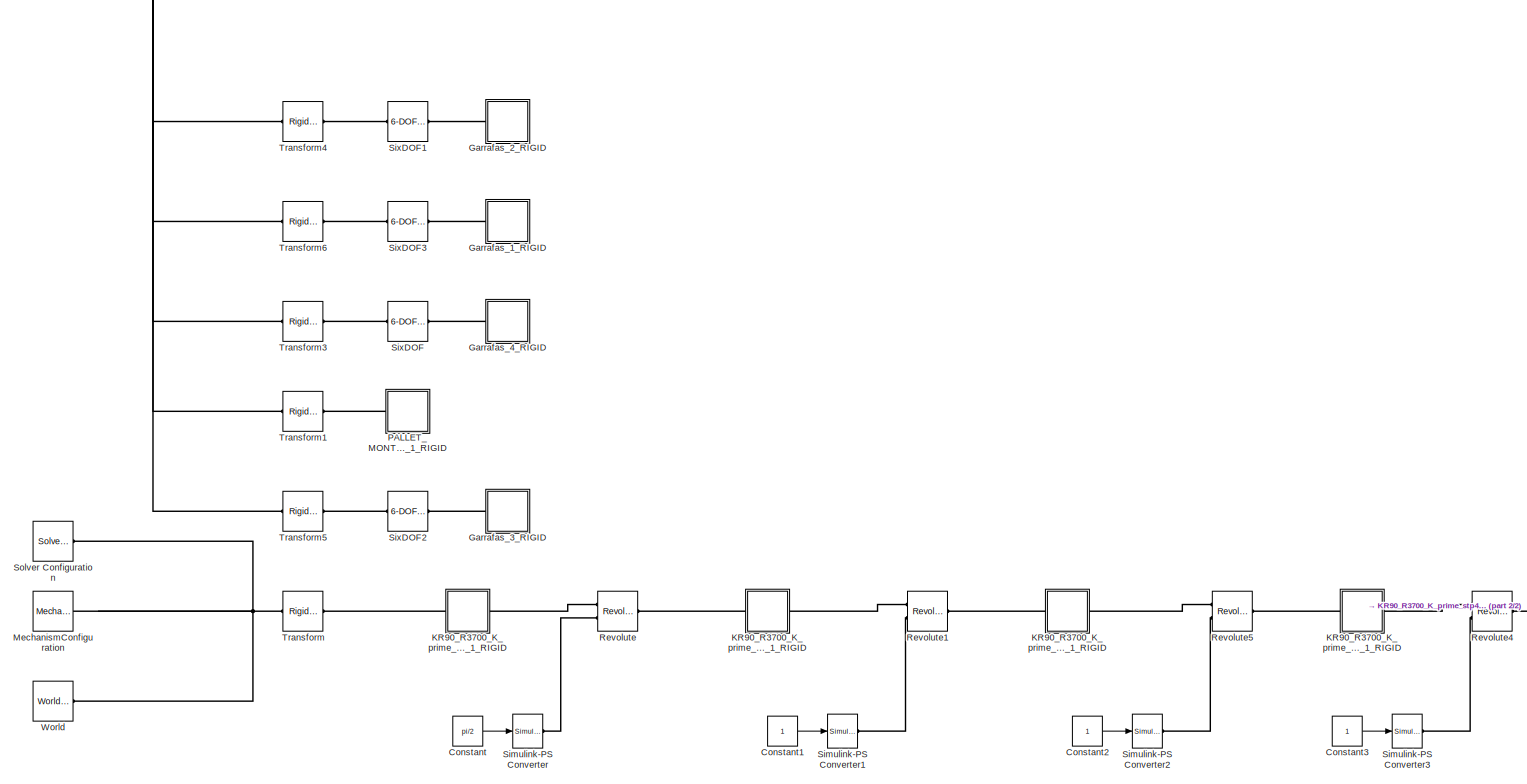
[diagram: root canvas - part 1/2, left side, full height]
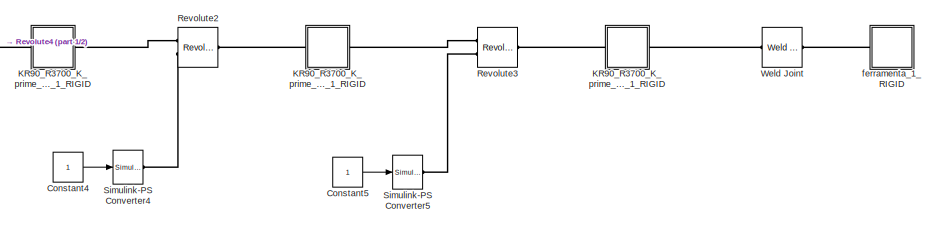
[diagram: root canvas - part 2/2, bottom right region]
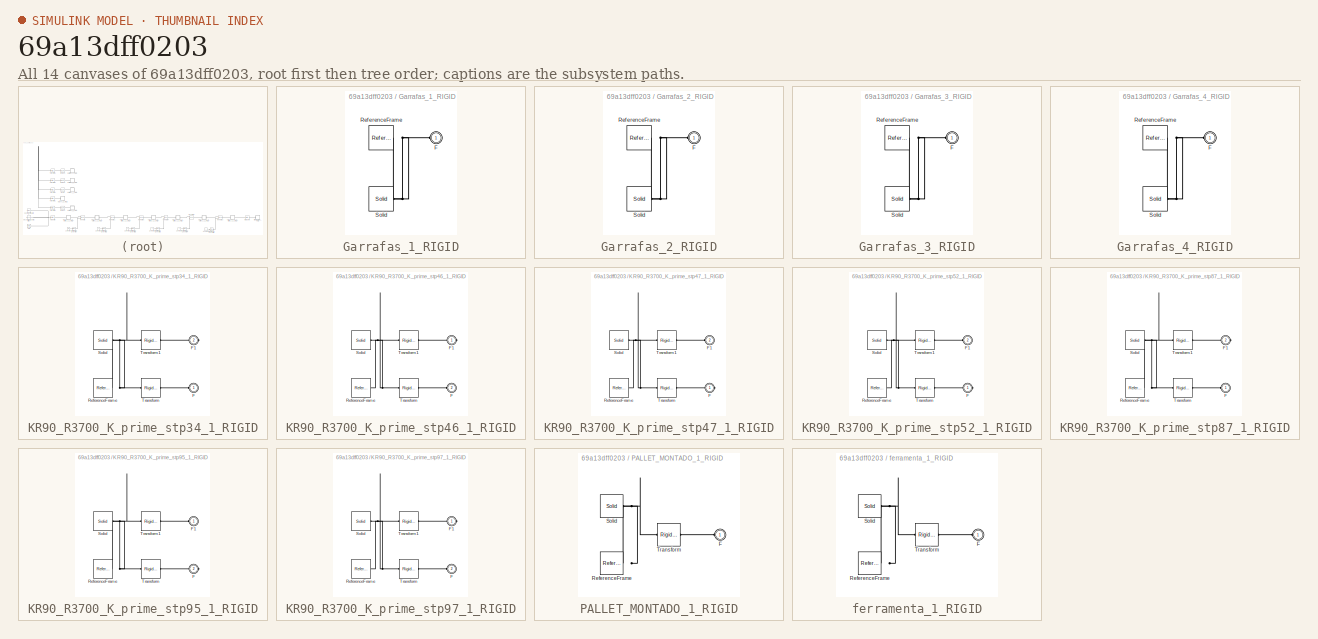
[diagram: thumbnail index - all 14 canvases of the model, root first then tree order]
MODEL slx_69a13dff0203
KIND model
CONFIG AbsTol = auto
CONFIG EnableMultiTasking = off
CONFIG FixedStep = auto
CONFIG MaxStep = auto
CONFIG MinStep = auto
CONFIG RelTol = 1e-3
CONFIG SampleTimeConstraint = Unconstrained
CONFIG Solver = VariableStepAuto
CONFIG SolverName = VariableStepAuto
CONFIG StartTime = 0.0
CONFIG StopTime = 10.0
WORKSPACE source: external: MATLAB File  (data not in archive)
BLOCK [Constant] Constant
  Value = pi/2
BLOCK [Constant] Constant1
BLOCK [Constant] Constant2
BLOCK [Constant] Constant3
BLOCK [Constant] Constant4
BLOCK [Constant] Constant5
BLOCK [SubSystem] Garrafas_1_RIGID
  Ports = [0, 0, 0, 0, 0, 1]
  RequestExecContextInheritance = off
BLOCK [PMIOPort] Garrafas_1_RIGID/F
  Side = Left
BLOCK [Reference] Garrafas_1_RIGID/ReferenceFrame  REF=sm_lib/Frames and
Transforms/Reference
Frame
  Ports = [0, 0, 0, 0, 0, 0, 1]
  SourceBlock = sm_lib/Frames and\nTransforms/Reference\nFrame
  SourceProductBaseCode = MS
  SourceProductName = Simscape Multibody
  SourceType = Reference\nFrame
BLOCK [Reference] Garrafas_1_RIGID/Solid  REF=sm_lib/Body Elements/Solid
  Ports = [0, 0, 0, 0, 0, 0, 1]
  SourceBlock = sm_lib/Body Elements/Solid
  SourceProductBaseCode = MS
  SourceProductName = Simscape Multibody
  SourceType = Solid
BLOCK [SubSystem] Garrafas_2_RIGID
  Ports = [0, 0, 0, 0, 0, 1]
  RequestExecContextInheritance = off
BLOCK [PMIOPort] Garrafas_2_RIGID/F
  Side = Left
BLOCK [Reference] Garrafas_2_RIGID/ReferenceFrame  REF=sm_lib/Frames and
Transforms/Reference
Frame
  Ports = [0, 0, 0, 0, 0, 0, 1]
  SourceBlock = sm_lib/Frames and\nTransforms/Reference\nFrame
  SourceProductBaseCode = MS
  SourceProductName = Simscape Multibody
  SourceType = Reference\nFrame
BLOCK [Reference] Garrafas_2_RIGID/Solid  REF=sm_lib/Body Elements/Solid
  Ports = [0, 0, 0, 0, 0, 0, 1]
  SourceBlock = sm_lib/Body Elements/Solid
  SourceProductBaseCode = MS
  SourceProductName = Simscape Multibody
  SourceType = Solid
BLOCK [SubSystem] Garrafas_3_RIGID
  Ports = [0, 0, 0, 0, 0, 1]
  RequestExecContextInheritance = off
BLOCK [PMIOPort] Garrafas_3_RIGID/F
  Side = Left
BLOCK [Reference] Garrafas_3_RIGID/ReferenceFrame  REF=sm_lib/Frames and
Transforms/Reference
Frame
  Ports = [0, 0, 0, 0, 0, 0, 1]
  SourceBlock = sm_lib/Frames and\nTransforms/Reference\nFrame
  SourceProductBaseCode = MS
  SourceProductName = Simscape Multibody
  SourceType = Reference\nFrame
BLOCK [Reference] Garrafas_3_RIGID/Solid  REF=sm_lib/Body Elements/Solid
  Ports = [0, 0, 0, 0, 0, 0, 1]
  SourceBlock = sm_lib/Body Elements/Solid
  SourceProductBaseCode = MS
  SourceProductName = Simscape Multibody
  SourceType = Solid
BLOCK [SubSystem] Garrafas_4_RIGID
  Ports = [0, 0, 0, 0, 0, 1]
  RequestExecContextInheritance = off
BLOCK [PMIOPort] Garrafas_4_RIGID/F
  Side = Left
BLOCK [Reference] Garrafas_4_RIGID/ReferenceFrame  REF=sm_lib/Frames and
Transforms/Reference
Frame
  Ports = [0, 0, 0, 0, 0, 0, 1]
  SourceBlock = sm_lib/Frames and\nTransforms/Reference\nFrame
  SourceProductBaseCode = MS
  SourceProductName = Simscape Multibody
  SourceType = Reference\nFrame
BLOCK [Reference] Garrafas_4_RIGID/Solid  REF=sm_lib/Body Elements/Solid
  Ports = [0, 0, 0, 0, 0, 0, 1]
  SourceBlock = sm_lib/Body Elements/Solid
  SourceProductBaseCode = MS
  SourceProductName = Simscape Multibody
  SourceType = Solid
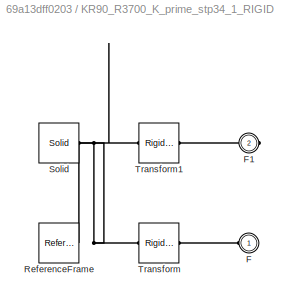
BLOCK [SubSystem] KR90_R3700_K_prime_stp34_1_RIGID
  Ports = [0, 0, 0, 0, 0, 1, 1]
  RequestExecContextInheritance = off
BLOCK [PMIOPort] KR90_R3700_K_prime_stp34_1_RIGID/F
  Side = Left
BLOCK [PMIOPort] KR90_R3700_K_prime_stp34_1_RIGID/F1
  Port = 2
  Side = Right
BLOCK [Reference] KR90_R3700_K_prime_stp34_1_RIGID/ReferenceFrame  REF=sm_lib/Frames and
Transforms/Reference
Frame
  Ports = [0, 0, 0, 0, 0, 0, 1]
  SourceBlock = sm_lib/Frames and\nTransforms/Reference\nFrame
  SourceProductBaseCode = MS
  SourceProductName = Simscape Multibody
  SourceType = Reference\nFrame
BLOCK [Reference] KR90_R3700_K_prime_stp34_1_RIGID/Solid  REF=sm_lib/Body Elements/Solid
  Ports = [0, 0, 0, 0, 0, 0, 1]
  SourceBlock = sm_lib/Body Elements/Solid
  SourceProductBaseCode = MS
  SourceProductName = Simscape Multibody
  SourceType = Solid
BLOCK [Reference] KR90_R3700_K_prime_stp34_1_RIGID/Transform  REF=sm_lib/Frames and
Transforms/Rigid
Transform
  Ports = [0, 0, 0, 0, 0, 1, 1]
  SourceBlock = sm_lib/Frames and\nTransforms/Rigid\nTransform
  SourceProductBaseCode = MS
  SourceProductName = Simscape Multibody
  SourceType = Rigid\nTransform
BLOCK [Reference] KR90_R3700_K_prime_stp34_1_RIGID/Transform1  REF=sm_lib/Frames and
Transforms/Rigid
Transform
  Ports = [0, 0, 0, 0, 0, 1, 1]
  SourceBlock = sm_lib/Frames and\nTransforms/Rigid\nTransform
  SourceProductBaseCode = MS
  SourceProductName = Simscape Multibody
  SourceType = Rigid\nTransform
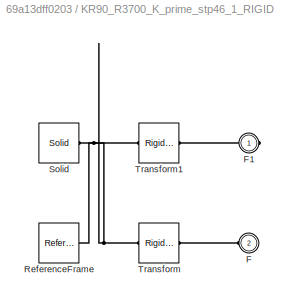
BLOCK [SubSystem] KR90_R3700_K_prime_stp46_1_RIGID
  Ports = [0, 0, 0, 0, 0, 1, 1]
  RequestExecContextInheritance = off
BLOCK [PMIOPort] KR90_R3700_K_prime_stp46_1_RIGID/F
  Port = 2
  Side = Left
BLOCK [PMIOPort] KR90_R3700_K_prime_stp46_1_RIGID/F1
  Side = Right
BLOCK [Reference] KR90_R3700_K_prime_stp46_1_RIGID/ReferenceFrame  REF=sm_lib/Frames and
Transforms/Reference
Frame
  Ports = [0, 0, 0, 0, 0, 0, 1]
  SourceBlock = sm_lib/Frames and\nTransforms/Reference\nFrame
  SourceProductBaseCode = MS
  SourceProductName = Simscape Multibody
  SourceType = Reference\nFrame
BLOCK [Reference] KR90_R3700_K_prime_stp46_1_RIGID/Solid  REF=sm_lib/Body Elements/Solid
  Ports = [0, 0, 0, 0, 0, 0, 1]
  SourceBlock = sm_lib/Body Elements/Solid
  SourceProductBaseCode = MS
  SourceProductName = Simscape Multibody
  SourceType = Solid
BLOCK [Reference] KR90_R3700_K_prime_stp46_1_RIGID/Transform  REF=sm_lib/Frames and
Transforms/Rigid
Transform
  Ports = [0, 0, 0, 0, 0, 1, 1]
  SourceBlock = sm_lib/Frames and\nTransforms/Rigid\nTransform
  SourceProductBaseCode = MS
  SourceProductName = Simscape Multibody
  SourceType = Rigid\nTransform
BLOCK [Reference] KR90_R3700_K_prime_stp46_1_RIGID/Transform1  REF=sm_lib/Frames and
Transforms/Rigid
Transform
  Ports = [0, 0, 0, 0, 0, 1, 1]
  SourceBlock = sm_lib/Frames and\nTransforms/Rigid\nTransform
  SourceProductBaseCode = MS
  SourceProductName = Simscape Multibody
  SourceType = Rigid\nTransform
BLOCK [SubSystem] KR90_R3700_K_prime_stp47_1_RIGID
  Ports = [0, 0, 0, 0, 0, 1, 1]
  RequestExecContextInheritance = off
BLOCK [PMIOPort] KR90_R3700_K_prime_stp47_1_RIGID/F
  Side = Right
BLOCK [PMIOPort] KR90_R3700_K_prime_stp47_1_RIGID/F1
  Port = 2
  Side = Left
BLOCK [Reference] KR90_R3700_K_prime_stp47_1_RIGID/ReferenceFrame  REF=sm_lib/Frames and
Transforms/Reference
Frame
  Ports = [0, 0, 0, 0, 0, 0, 1]
  SourceBlock = sm_lib/Frames and\nTransforms/Reference\nFrame
  SourceProductBaseCode = MS
  SourceProductName = Simscape Multibody
  SourceType = Reference\nFrame
BLOCK [Reference] KR90_R3700_K_prime_stp47_1_RIGID/Solid  REF=sm_lib/Body Elements/Solid
  Ports = [0, 0, 0, 0, 0, 0, 1]
  SourceBlock = sm_lib/Body Elements/Solid
  SourceProductBaseCode = MS
  SourceProductName = Simscape Multibody
  SourceType = Solid
BLOCK [Reference] KR90_R3700_K_prime_stp47_1_RIGID/Transform  REF=sm_lib/Frames and
Transforms/Rigid
Transform
  Ports = [0, 0, 0, 0, 0, 1, 1]
  SourceBlock = sm_lib/Frames and\nTransforms/Rigid\nTransform
  SourceProductBaseCode = MS
  SourceProductName = Simscape Multibody
  SourceType = Rigid\nTransform
BLOCK [Reference] KR90_R3700_K_prime_stp47_1_RIGID/Transform1  REF=sm_lib/Frames and
Transforms/Rigid
Transform
  Ports = [0, 0, 0, 0, 0, 1, 1]
  SourceBlock = sm_lib/Frames and\nTransforms/Rigid\nTransform
  SourceProductBaseCode = MS
  SourceProductName = Simscape Multibody
  SourceType = Rigid\nTransform
BLOCK [SubSystem] KR90_R3700_K_prime_stp52_1_RIGID
  Ports = [0, 0, 0, 0, 0, 1, 1]
  RequestExecContextInheritance = off
BLOCK [PMIOPort] KR90_R3700_K_prime_stp52_1_RIGID/F
  Side = Right
BLOCK [PMIOPort] KR90_R3700_K_prime_stp52_1_RIGID/F1
  Port = 2
  Side = Left
BLOCK [Reference] KR90_R3700_K_prime_stp52_1_RIGID/ReferenceFrame  REF=sm_lib/Frames and
Transforms/Reference
Frame
  Ports = [0, 0, 0, 0, 0, 0, 1]
  SourceBlock = sm_lib/Frames and\nTransforms/Reference\nFrame
  SourceProductBaseCode = MS
  SourceProductName = Simscape Multibody
  SourceType = Reference\nFrame
BLOCK [Reference] KR90_R3700_K_prime_stp52_1_RIGID/Solid  REF=sm_lib/Body Elements/Solid
  Ports = [0, 0, 0, 0, 0, 0, 1]
  SourceBlock = sm_lib/Body Elements/Solid
  SourceProductBaseCode = MS
  SourceProductName = Simscape Multibody
  SourceType = Solid
BLOCK [Reference] KR90_R3700_K_prime_stp52_1_RIGID/Transform  REF=sm_lib/Frames and
Transforms/Rigid
Transform
  Ports = [0, 0, 0, 0, 0, 1, 1]
  SourceBlock = sm_lib/Frames and\nTransforms/Rigid\nTransform
  SourceProductBaseCode = MS
  SourceProductName = Simscape Multibody
  SourceType = Rigid\nTransform
BLOCK [Reference] KR90_R3700_K_prime_stp52_1_RIGID/Transform1  REF=sm_lib/Frames and
Transforms/Rigid
Transform
  Ports = [0, 0, 0, 0, 0, 1, 1]
  SourceBlock = sm_lib/Frames and\nTransforms/Rigid\nTransform
  SourceProductBaseCode = MS
  SourceProductName = Simscape Multibody
  SourceType = Rigid\nTransform
BLOCK [SubSystem] KR90_R3700_K_prime_stp87_1_RIGID
  Ports = [0, 0, 0, 0, 0, 1, 1]
  RequestExecContextInheritance = off
BLOCK [PMIOPort] KR90_R3700_K_prime_stp87_1_RIGID/F
  Side = Left
BLOCK [PMIOPort] KR90_R3700_K_prime_stp87_1_RIGID/F1
  Port = 2
  Side = Right
BLOCK [Reference] KR90_R3700_K_prime_stp87_1_RIGID/ReferenceFrame  REF=sm_lib/Frames and
Transforms/Reference
Frame
  Ports = [0, 0, 0, 0, 0, 0, 1]
  SourceBlock = sm_lib/Frames and\nTransforms/Reference\nFrame
  SourceProductBaseCode = MS
  SourceProductName = Simscape Multibody
  SourceType = Reference\nFrame
BLOCK [Reference] KR90_R3700_K_prime_stp87_1_RIGID/Solid  REF=sm_lib/Body Elements/Solid
  Ports = [0, 0, 0, 0, 0, 0, 1]
  SourceBlock = sm_lib/Body Elements/Solid
  SourceProductBaseCode = MS
  SourceProductName = Simscape Multibody
  SourceType = Solid
BLOCK [Reference] KR90_R3700_K_prime_stp87_1_RIGID/Transform  REF=sm_lib/Frames and
Transforms/Rigid
Transform
  Ports = [0, 0, 0, 0, 0, 1, 1]
  SourceBlock = sm_lib/Frames and\nTransforms/Rigid\nTransform
  SourceProductBaseCode = MS
  SourceProductName = Simscape Multibody
  SourceType = Rigid\nTransform
BLOCK [Reference] KR90_R3700_K_prime_stp87_1_RIGID/Transform1  REF=sm_lib/Frames and
Transforms/Rigid
Transform
  Ports = [0, 0, 0, 0, 0, 1, 1]
  SourceBlock = sm_lib/Frames and\nTransforms/Rigid\nTransform
  SourceProductBaseCode = MS
  SourceProductName = Simscape Multibody
  SourceType = Rigid\nTransform
BLOCK [SubSystem] KR90_R3700_K_prime_stp95_1_RIGID
  Ports = [0, 0, 0, 0, 0, 1, 1]
  RequestExecContextInheritance = off
BLOCK [PMIOPort] KR90_R3700_K_prime_stp95_1_RIGID/F
  Port = 2
  Side = Right
BLOCK [PMIOPort] KR90_R3700_K_prime_stp95_1_RIGID/F1
  Side = Left
BLOCK [Reference] KR90_R3700_K_prime_stp95_1_RIGID/ReferenceFrame  REF=sm_lib/Frames and
Transforms/Reference
Frame
  Ports = [0, 0, 0, 0, 0, 0, 1]
  SourceBlock = sm_lib/Frames and\nTransforms/Reference\nFrame
  SourceProductBaseCode = MS
  SourceProductName = Simscape Multibody
  SourceType = Reference\nFrame
BLOCK [Reference] KR90_R3700_K_prime_stp95_1_RIGID/Solid  REF=sm_lib/Body Elements/Solid
  Ports = [0, 0, 0, 0, 0, 0, 1]
  SourceBlock = sm_lib/Body Elements/Solid
  SourceProductBaseCode = MS
  SourceProductName = Simscape Multibody
  SourceType = Solid
BLOCK [Reference] KR90_R3700_K_prime_stp95_1_RIGID/Transform  REF=sm_lib/Frames and
Transforms/Rigid
Transform
  Ports = [0, 0, 0, 0, 0, 1, 1]
  SourceBlock = sm_lib/Frames and\nTransforms/Rigid\nTransform
  SourceProductBaseCode = MS
  SourceProductName = Simscape Multibody
  SourceType = Rigid\nTransform
BLOCK [Reference] KR90_R3700_K_prime_stp95_1_RIGID/Transform1  REF=sm_lib/Frames and
Transforms/Rigid
Transform
  Ports = [0, 0, 0, 0, 0, 1, 1]
  SourceBlock = sm_lib/Frames and\nTransforms/Rigid\nTransform
  SourceProductBaseCode = MS
  SourceProductName = Simscape Multibody
  SourceType = Rigid\nTransform
BLOCK [SubSystem] KR90_R3700_K_prime_stp97_1_RIGID
  Ports = [0, 0, 0, 0, 0, 1, 1]
  RequestExecContextInheritance = off
BLOCK [PMIOPort] KR90_R3700_K_prime_stp97_1_RIGID/F
  Port = 2
  Side = Left
BLOCK [PMIOPort] KR90_R3700_K_prime_stp97_1_RIGID/F1
  Side = Right
BLOCK [Reference] KR90_R3700_K_prime_stp97_1_RIGID/ReferenceFrame  REF=sm_lib/Frames and
Transforms/Reference
Frame
  Ports = [0, 0, 0, 0, 0, 0, 1]
  SourceBlock = sm_lib/Frames and\nTransforms/Reference\nFrame
  SourceProductBaseCode = MS
  SourceProductName = Simscape Multibody
  SourceType = Reference\nFrame
BLOCK [Reference] KR90_R3700_K_prime_stp97_1_RIGID/Solid  REF=sm_lib/Body Elements/Solid
  Ports = [0, 0, 0, 0, 0, 0, 1]
  SourceBlock = sm_lib/Body Elements/Solid
  SourceProductBaseCode = MS
  SourceProductName = Simscape Multibody
  SourceType = Solid
BLOCK [Reference] KR90_R3700_K_prime_stp97_1_RIGID/Transform  REF=sm_lib/Frames and
Transforms/Rigid
Transform
  Ports = [0, 0, 0, 0, 0, 1, 1]
  SourceBlock = sm_lib/Frames and\nTransforms/Rigid\nTransform
  SourceProductBaseCode = MS
  SourceProductName = Simscape Multibody
  SourceType = Rigid\nTransform
BLOCK [Reference] KR90_R3700_K_prime_stp97_1_RIGID/Transform1  REF=sm_lib/Frames and
Transforms/Rigid
Transform
  Ports = [0, 0, 0, 0, 0, 1, 1]
  SourceBlock = sm_lib/Frames and\nTransforms/Rigid\nTransform
  SourceProductBaseCode = MS
  SourceProductName = Simscape Multibody
  SourceType = Rigid\nTransform
BLOCK [Reference] MechanismConfiguration  REF=sm_lib/Utilities/Mechanism
Configuration
  Ports = [0, 0, 0, 0, 0, 0, 1]
  SourceBlock = sm_lib/Utilities/Mechanism\nConfiguration
  SourceProductBaseCode = MS
  SourceProductName = Simscape Multibody
  SourceType = Mechanism\nConfiguration
BLOCK [SubSystem] PALLET_MONTADO_1_RIGID
  Ports = [0, 0, 0, 0, 0, 1]
  RequestExecContextInheritance = off
BLOCK [PMIOPort] PALLET_MONTADO_1_RIGID/F
  Side = Left
BLOCK [Reference] PALLET_MONTADO_1_RIGID/ReferenceFrame  REF=sm_lib/Frames and
Transforms/Reference
Frame
  Ports = [0, 0, 0, 0, 0, 0, 1]
  SourceBlock = sm_lib/Frames and\nTransforms/Reference\nFrame
  SourceProductBaseCode = MS
  SourceProductName = Simscape Multibody
  SourceType = Reference\nFrame
BLOCK [Reference] PALLET_MONTADO_1_RIGID/Solid  REF=sm_lib/Body Elements/Solid
  Ports = [0, 0, 0, 0, 0, 0, 1]
  SourceBlock = sm_lib/Body Elements/Solid
  SourceProductBaseCode = MS
  SourceProductName = Simscape Multibody
  SourceType = Solid
BLOCK [Reference] PALLET_MONTADO_1_RIGID/Transform  REF=sm_lib/Frames and
Transforms/Rigid
Transform
  Ports = [0, 0, 0, 0, 0, 1, 1]
  SourceBlock = sm_lib/Frames and\nTransforms/Rigid\nTransform
  SourceProductBaseCode = MS
  SourceProductName = Simscape Multibody
  SourceType = Rigid\nTransform
BLOCK [Reference] Revolute  REF=sm_lib/Joints/Revolute Joint
  Ports = [0, 0, 0, 0, 0, 2, 1]
  SourceBlock = sm_lib/Joints/Revolute Joint
  SourceProductBaseCode = MS
  SourceProductName = Simscape Multibody
  SourceType = Revolute Joint
BLOCK [Reference] Revolute1  REF=sm_lib/Joints/Revolute Joint
  Ports = [0, 0, 0, 0, 0, 2, 1]
  SourceBlock = sm_lib/Joints/Revolute Joint
  SourceProductBaseCode = MS
  SourceProductName = Simscape Multibody
  SourceType = Revolute Joint
BLOCK [Reference] Revolute2  REF=sm_lib/Joints/Revolute Joint
  Ports = [0, 0, 0, 0, 0, 2, 1]
  SourceBlock = sm_lib/Joints/Revolute Joint
  SourceProductBaseCode = MS
  SourceProductName = Simscape Multibody
  SourceType = Revolute Joint
BLOCK [Reference] Revolute3  REF=sm_lib/Joints/Revolute Joint
  Ports = [0, 0, 0, 0, 0, 2, 1]
  SourceBlock = sm_lib/Joints/Revolute Joint
  SourceProductBaseCode = MS
  SourceProductName = Simscape Multibody
  SourceType = Revolute Joint
BLOCK [Reference] Revolute4  REF=sm_lib/Joints/Revolute Joint
  Ports = [0, 0, 0, 0, 0, 2, 1]
  SourceBlock = sm_lib/Joints/Revolute Joint
  SourceProductBaseCode = MS
  SourceProductName = Simscape Multibody
  SourceType = Revolute Joint
BLOCK [Reference] Revolute5  REF=sm_lib/Joints/Revolute Joint
  Ports = [0, 0, 0, 0, 0, 2, 1]
  SourceBlock = sm_lib/Joints/Revolute Joint
  SourceProductBaseCode = MS
  SourceProductName = Simscape Multibody
  SourceType = Revolute Joint
BLOCK [Reference] Simulink-PS Converter  REF=nesl_utility/Simulink-PS
Converter
  Ports = [1, 0, 0, 0, 0, 0, 1]
  SourceBlock = nesl_utility/Simulink-PS\nConverter
  SourceProductBaseCode = SS
  SourceProductName = Simscape
  SourceType = Simulink-PS\nConverter
BLOCK [Reference] Simulink-PS Converter1  REF=nesl_utility/Simulink-PS
Converter
  Ports = [1, 0, 0, 0, 0, 0, 1]
  SourceBlock = nesl_utility/Simulink-PS\nConverter
  SourceProductBaseCode = SS
  SourceProductName = Simscape
  SourceType = Simulink-PS\nConverter
BLOCK [Reference] Simulink-PS Converter2  REF=nesl_utility/Simulink-PS
Converter
  Ports = [1, 0, 0, 0, 0, 0, 1]
  SourceBlock = nesl_utility/Simulink-PS\nConverter
  SourceProductBaseCode = SS
  SourceProductName = Simscape
  SourceType = Simulink-PS\nConverter
BLOCK [Reference] Simulink-PS Converter3  REF=nesl_utility/Simulink-PS
Converter
  Ports = [1, 0, 0, 0, 0, 0, 1]
  SourceBlock = nesl_utility/Simulink-PS\nConverter
  SourceProductBaseCode = SS
  SourceProductName = Simscape
  SourceType = Simulink-PS\nConverter
BLOCK [Reference] Simulink-PS Converter4  REF=nesl_utility/Simulink-PS
Converter
  Ports = [1, 0, 0, 0, 0, 0, 1]
  SourceBlock = nesl_utility/Simulink-PS\nConverter
  SourceProductBaseCode = SS
  SourceProductName = Simscape
  SourceType = Simulink-PS\nConverter
BLOCK [Reference] Simulink-PS Converter5  REF=nesl_utility/Simulink-PS
Converter
  Ports = [1, 0, 0, 0, 0, 0, 1]
  SourceBlock = nesl_utility/Simulink-PS\nConverter
  SourceProductBaseCode = SS
  SourceProductName = Simscape
  SourceType = Simulink-PS\nConverter
BLOCK [Reference] SixDOF  REF=sm_lib/Joints/6-DOF Joint
  Ports = [0, 0, 0, 0, 0, 1, 1]
  SourceBlock = sm_lib/Joints/6-DOF Joint
  SourceProductBaseCode = MS
  SourceProductName = Simscape Multibody
  SourceType = 6-DOF Joint
BLOCK [Reference] SixDOF1  REF=sm_lib/Joints/6-DOF Joint
  Ports = [0, 0, 0, 0, 0, 1, 1]
  SourceBlock = sm_lib/Joints/6-DOF Joint
  SourceProductBaseCode = MS
  SourceProductName = Simscape Multibody
  SourceType = 6-DOF Joint
BLOCK [Reference] SixDOF2  REF=sm_lib/Joints/6-DOF Joint
  Ports = [0, 0, 0, 0, 0, 1, 1]
  SourceBlock = sm_lib/Joints/6-DOF Joint
  SourceProductBaseCode = MS
  SourceProductName = Simscape Multibody
  SourceType = 6-DOF Joint
BLOCK [Reference] SixDOF3  REF=sm_lib/Joints/6-DOF Joint
  Ports = [0, 0, 0, 0, 0, 1, 1]
  SourceBlock = sm_lib/Joints/6-DOF Joint
  SourceProductBaseCode = MS
  SourceProductName = Simscape Multibody
  SourceType = 6-DOF Joint
BLOCK [Reference] Solver Configuration  REF=nesl_utility/Solver
Configuration
  Ports = [0, 0, 0, 0, 0, 0, 1]
  SourceBlock = nesl_utility/Solver\nConfiguration
  SourceProductBaseCode = SS
  SourceProductName = Simscape
  SourceType = Solver\nConfiguration
BLOCK [Reference] Transform  REF=sm_lib/Frames and
Transforms/Rigid
Transform
  Ports = [0, 0, 0, 0, 0, 1, 1]
  SourceBlock = sm_lib/Frames and\nTransforms/Rigid\nTransform
  SourceProductBaseCode = MS
  SourceProductName = Simscape Multibody
  SourceType = Rigid\nTransform
BLOCK [Reference] Transform1  REF=sm_lib/Frames and
Transforms/Rigid
Transform
  Ports = [0, 0, 0, 0, 0, 1, 1]
  SourceBlock = sm_lib/Frames and\nTransforms/Rigid\nTransform
  SourceProductBaseCode = MS
  SourceProductName = Simscape Multibody
  SourceType = Rigid\nTransform
BLOCK [Reference] Transform3  REF=sm_lib/Frames and
Transforms/Rigid
Transform
  Ports = [0, 0, 0, 0, 0, 1, 1]
  SourceBlock = sm_lib/Frames and\nTransforms/Rigid\nTransform
  SourceProductBaseCode = MS
  SourceProductName = Simscape Multibody
  SourceType = Rigid\nTransform
BLOCK [Reference] Transform4  REF=sm_lib/Frames and
Transforms/Rigid
Transform
  Ports = [0, 0, 0, 0, 0, 1, 1]
  SourceBlock = sm_lib/Frames and\nTransforms/Rigid\nTransform
  SourceProductBaseCode = MS
  SourceProductName = Simscape Multibody
  SourceType = Rigid\nTransform
BLOCK [Reference] Transform5  REF=sm_lib/Frames and
Transforms/Rigid
Transform
  Ports = [0, 0, 0, 0, 0, 1, 1]
  SourceBlock = sm_lib/Frames and\nTransforms/Rigid\nTransform
  SourceProductBaseCode = MS
  SourceProductName = Simscape Multibody
  SourceType = Rigid\nTransform
BLOCK [Reference] Transform6  REF=sm_lib/Frames and
Transforms/Rigid
Transform
  Ports = [0, 0, 0, 0, 0, 1, 1]
  SourceBlock = sm_lib/Frames and\nTransforms/Rigid\nTransform
  SourceProductBaseCode = MS
  SourceProductName = Simscape Multibody
  SourceType = Rigid\nTransform
BLOCK [Reference] Weld Joint  REF=sm_lib/Joints/Weld Joint
  Ports = [0, 0, 0, 0, 0, 1, 1]
  SourceBlock = sm_lib/Joints/Weld Joint
  SourceProductBaseCode = MS
  SourceProductName = Simscape Multibody
  SourceType = Weld Joint
BLOCK [Reference] World  REF=sm_lib/Frames and
Transforms/World Frame
  Ports = [0, 0, 0, 0, 0, 0, 1]
  SourceBlock = sm_lib/Frames and\nTransforms/World Frame
  SourceProductBaseCode = MS
  SourceProductName = Simscape Multibody
  SourceType = World Frame
BLOCK [SubSystem] ferramenta_1_RIGID
  Ports = [0, 0, 0, 0, 0, 1]
  RequestExecContextInheritance = off
BLOCK [PMIOPort] ferramenta_1_RIGID/F
  Side = Left
BLOCK [Reference] ferramenta_1_RIGID/ReferenceFrame  REF=sm_lib/Frames and
Transforms/Reference
Frame
  Ports = [0, 0, 0, 0, 0, 0, 1]
  SourceBlock = sm_lib/Frames and\nTransforms/Reference\nFrame
  SourceProductBaseCode = MS
  SourceProductName = Simscape Multibody
  SourceType = Reference\nFrame
BLOCK [Reference] ferramenta_1_RIGID/Solid  REF=sm_lib/Body Elements/Solid
  Ports = [0, 0, 0, 0, 0, 0, 1]
  SourceBlock = sm_lib/Body Elements/Solid
  SourceProductBaseCode = MS
  SourceProductName = Simscape Multibody
  SourceType = Solid
BLOCK [Reference] ferramenta_1_RIGID/Transform  REF=sm_lib/Frames and
Transforms/Rigid
Transform
  Ports = [0, 0, 0, 0, 0, 1, 1]
  SourceBlock = sm_lib/Frames and\nTransforms/Rigid\nTransform
  SourceProductBaseCode = MS
  SourceProductName = Simscape Multibody
  SourceType = Rigid\nTransform
LINE Constant1:1 -> Simulink-PS Converter1:1
LINE Constant2:1 -> Simulink-PS Converter2:1
LINE Constant3:1 -> Simulink-PS Converter3:1
LINE Constant4:1 -> Simulink-PS Converter4:1
LINE Constant5:1 -> Simulink-PS Converter5:1
LINE Constant:1 -> Simulink-PS Converter:1
PNET net1: Garrafas_1_RIGID/F:RConn1 -- Garrafas_1_RIGID/ReferenceFrame:RConn1 -- Garrafas_1_RIGID/Solid:RConn1
PLINE Garrafas_1_RIGID:LConn1 -- SixDOF3:RConn1
PNET net2: Garrafas_2_RIGID/F:RConn1 -- Garrafas_2_RIGID/ReferenceFrame:RConn1 -- Garrafas_2_RIGID/Solid:RConn1
PLINE Garrafas_2_RIGID:LConn1 -- SixDOF1:RConn1
PNET net3: Garrafas_3_RIGID/F:RConn1 -- Garrafas_3_RIGID/ReferenceFrame:RConn1 -- Garrafas_3_RIGID/Solid:RConn1
PLINE Garrafas_3_RIGID:LConn1 -- SixDOF2:RConn1
PNET net4: Garrafas_4_RIGID/F:RConn1 -- Garrafas_4_RIGID/ReferenceFrame:RConn1 -- Garrafas_4_RIGID/Solid:RConn1
PLINE Garrafas_4_RIGID:LConn1 -- SixDOF:RConn1
PLINE KR90_R3700_K_prime_stp34_1_RIGID/F1:RConn1 -- KR90_R3700_K_prime_stp34_1_RIGID/Transform1:RConn1
PLINE KR90_R3700_K_prime_stp34_1_RIGID/F:RConn1 -- KR90_R3700_K_prime_stp34_1_RIGID/Transform:RConn1
PNET net5: KR90_R3700_K_prime_stp34_1_RIGID/ReferenceFrame:RConn1 -- KR90_R3700_K_prime_stp34_1_RIGID/Solid:RConn1 -- KR90_R3700_K_prime_stp34_1_RIGID/Transform1:LConn1 -- KR90_R3700_K_prime_stp34_1_RIGID/Transform:LConn1
PLINE KR90_R3700_K_prime_stp34_1_RIGID:LConn1 -- Revolute:RConn1
PLINE KR90_R3700_K_prime_stp34_1_RIGID:RConn1 -- Revolute1:LConn1
PLINE KR90_R3700_K_prime_stp46_1_RIGID/F1:RConn1 -- KR90_R3700_K_prime_stp46_1_RIGID/Transform1:RConn1
PLINE KR90_R3700_K_prime_stp46_1_RIGID/F:RConn1 -- KR90_R3700_K_prime_stp46_1_RIGID/Transform:RConn1
PNET net6: KR90_R3700_K_prime_stp46_1_RIGID/ReferenceFrame:RConn1 -- KR90_R3700_K_prime_stp46_1_RIGID/Solid:RConn1 -- KR90_R3700_K_prime_stp46_1_RIGID/Transform1:LConn1 -- KR90_R3700_K_prime_stp46_1_RIGID/Transform:LConn1
PLINE KR90_R3700_K_prime_stp46_1_RIGID:LConn1 -- Revolute2:RConn1
PLINE KR90_R3700_K_prime_stp46_1_RIGID:RConn1 -- Revolute3:LConn1
PLINE KR90_R3700_K_prime_stp47_1_RIGID/F1:RConn1 -- KR90_R3700_K_prime_stp47_1_RIGID/Transform1:RConn1
PLINE KR90_R3700_K_prime_stp47_1_RIGID/F:RConn1 -- KR90_R3700_K_prime_stp47_1_RIGID/Transform:RConn1
PNET net7: KR90_R3700_K_prime_stp47_1_RIGID/ReferenceFrame:RConn1 -- KR90_R3700_K_prime_stp47_1_RIGID/Solid:RConn1 -- KR90_R3700_K_prime_stp47_1_RIGID/Transform1:LConn1 -- KR90_R3700_K_prime_stp47_1_RIGID/Transform:LConn1
PLINE KR90_R3700_K_prime_stp47_1_RIGID:LConn1 -- Revolute4:RConn1
PLINE KR90_R3700_K_prime_stp47_1_RIGID:RConn1 -- Revolute2:LConn1
PLINE KR90_R3700_K_prime_stp52_1_RIGID/F1:RConn1 -- KR90_R3700_K_prime_stp52_1_RIGID/Transform1:RConn1
PLINE KR90_R3700_K_prime_stp52_1_RIGID/F:RConn1 -- KR90_R3700_K_prime_stp52_1_RIGID/Transform:RConn1
PNET net8: KR90_R3700_K_prime_stp52_1_RIGID/ReferenceFrame:RConn1 -- KR90_R3700_K_prime_stp52_1_RIGID/Solid:RConn1 -- KR90_R3700_K_prime_stp52_1_RIGID/Transform1:LConn1 -- KR90_R3700_K_prime_stp52_1_RIGID/Transform:LConn1
PLINE KR90_R3700_K_prime_stp52_1_RIGID:LConn1 -- Revolute5:RConn1
PLINE KR90_R3700_K_prime_stp52_1_RIGID:RConn1 -- Revolute4:LConn1
PLINE KR90_R3700_K_prime_stp87_1_RIGID/F1:RConn1 -- KR90_R3700_K_prime_stp87_1_RIGID/Transform1:RConn1
PLINE KR90_R3700_K_prime_stp87_1_RIGID/F:RConn1 -- KR90_R3700_K_prime_stp87_1_RIGID/Transform:RConn1
PNET net9: KR90_R3700_K_prime_stp87_1_RIGID/ReferenceFrame:RConn1 -- KR90_R3700_K_prime_stp87_1_RIGID/Solid:RConn1 -- KR90_R3700_K_prime_stp87_1_RIGID/Transform1:LConn1 -- KR90_R3700_K_prime_stp87_1_RIGID/Transform:LConn1
PLINE KR90_R3700_K_prime_stp87_1_RIGID:LConn1 -- Revolute3:RConn1
PLINE KR90_R3700_K_prime_stp87_1_RIGID:RConn1 -- Weld Joint:LConn1
PLINE KR90_R3700_K_prime_stp95_1_RIGID/F1:RConn1 -- KR90_R3700_K_prime_stp95_1_RIGID/Transform1:RConn1
PLINE KR90_R3700_K_prime_stp95_1_RIGID/F:RConn1 -- KR90_R3700_K_prime_stp95_1_RIGID/Transform:RConn1
PNET net10: KR90_R3700_K_prime_stp95_1_RIGID/ReferenceFrame:RConn1 -- KR90_R3700_K_prime_stp95_1_RIGID/Solid:RConn1 -- KR90_R3700_K_prime_stp95_1_RIGID/Transform1:LConn1 -- KR90_R3700_K_prime_stp95_1_RIGID/Transform:LConn1
PLINE KR90_R3700_K_prime_stp95_1_RIGID:LConn1 -- Transform:RConn1
PLINE KR90_R3700_K_prime_stp95_1_RIGID:RConn1 -- Revolute:LConn1
PLINE KR90_R3700_K_prime_stp97_1_RIGID/F1:RConn1 -- KR90_R3700_K_prime_stp97_1_RIGID/Transform1:RConn1
PLINE KR90_R3700_K_prime_stp97_1_RIGID/F:RConn1 -- KR90_R3700_K_prime_stp97_1_RIGID/Transform:RConn1
PNET net11: KR90_R3700_K_prime_stp97_1_RIGID/ReferenceFrame:RConn1 -- KR90_R3700_K_prime_stp97_1_RIGID/Solid:RConn1 -- KR90_R3700_K_prime_stp97_1_RIGID/Transform1:LConn1 -- KR90_R3700_K_prime_stp97_1_RIGID/Transform:LConn1
PLINE KR90_R3700_K_prime_stp97_1_RIGID:LConn1 -- Revolute1:RConn1
PLINE KR90_R3700_K_prime_stp97_1_RIGID:RConn1 -- Revolute5:LConn1
PNET net12: MechanismConfiguration:RConn1 -- Solver Configuration:RConn1 -- Transform1:LConn1 -- Transform3:LConn1 -- Transform4:LConn1 -- Transform5:LConn1 -- Transform6:LConn1 -- Transform:LConn1 -- World:RConn1
PLINE PALLET_MONTADO_1_RIGID/F:RConn1 -- PALLET_MONTADO_1_RIGID/Transform:RConn1
PNET net13: PALLET_MONTADO_1_RIGID/ReferenceFrame:RConn1 -- PALLET_MONTADO_1_RIGID/Solid:RConn1 -- PALLET_MONTADO_1_RIGID/Transform:LConn1
PLINE PALLET_MONTADO_1_RIGID:LConn1 -- Transform1:RConn1
PLINE Revolute1:LConn2 -- Simulink-PS Converter1:RConn1
PLINE Revolute2:LConn2 -- Simulink-PS Converter4:RConn1
PLINE Revolute3:LConn2 -- Simulink-PS Converter5:RConn1
PLINE Revolute4:LConn2 -- Simulink-PS Converter3:RConn1
PLINE Revolute5:LConn2 -- Simulink-PS Converter2:RConn1
PLINE Revolute:LConn2 -- Simulink-PS Converter:RConn1
PLINE SixDOF1:LConn1 -- Transform4:RConn1
PLINE SixDOF2:LConn1 -- Transform5:RConn1
PLINE SixDOF3:LConn1 -- Transform6:RConn1
PLINE SixDOF:LConn1 -- Transform3:RConn1
PLINE Weld Joint:RConn1 -- ferramenta_1_RIGID:LConn1
PLINE ferramenta_1_RIGID/F:RConn1 -- ferramenta_1_RIGID/Transform:RConn1
PNET net14: ferramenta_1_RIGID/ReferenceFrame:RConn1 -- ferramenta_1_RIGID/Solid:RConn1 -- ferramenta_1_RIGID/Transform:LConn1
note: PNET lines group multi-terminal physical nets as a canonical sorted terminal list (undirected conserving connections); 2-terminal nets keep the pairwise PLINE form
